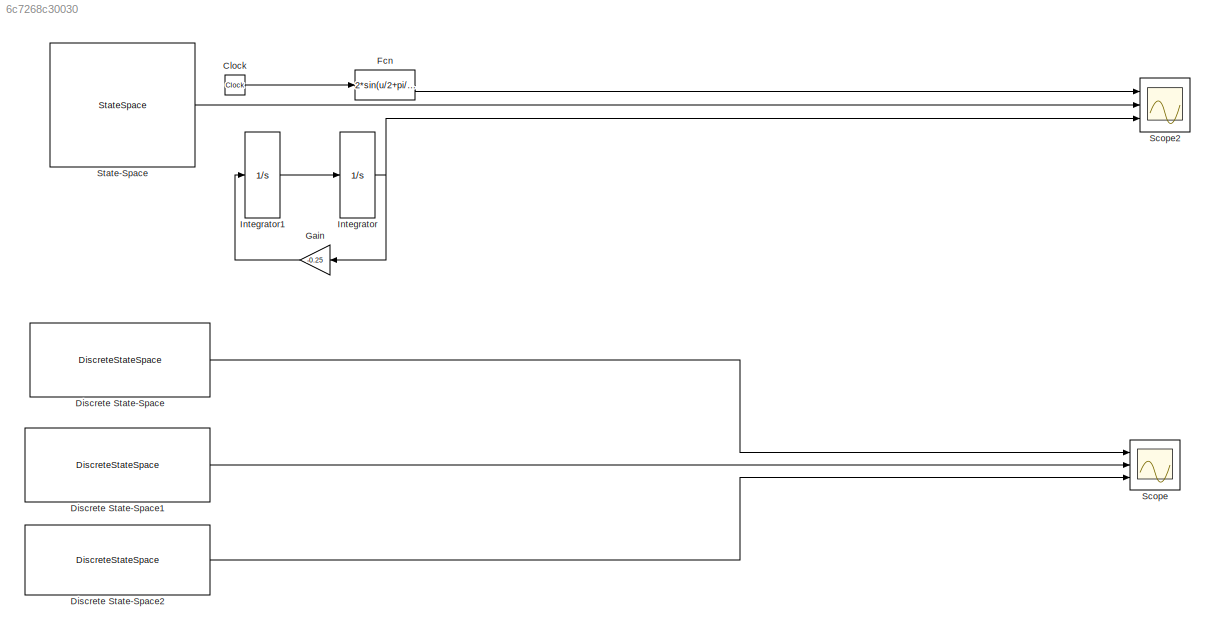
MODEL slx_6c7268c30030
KIND model
CONFIG AbsTol = auto
CONFIG EnableMultiTasking = off
CONFIG FixedStep = auto
CONFIG MaxStep = auto
CONFIG MinStep = auto
CONFIG RelTol = 1e-3
CONFIG SampleTimeConstraint = Unconstrained
CONFIG Solver = VariableStepAuto
CONFIG SolverName = VariableStepAuto
CONFIG StartTime = 0.0
CONFIG StopTime = 10.0
BLOCK [Clock] Clock
BLOCK [DiscreteStateSpace] Discrete State-Space
  A = yd1.A
  B = yd1.B
  C = yd1.C
  D = yd1.D
  InitialCondition = [2*sin(pi/6) cos(pi/6)]
  SampleTime = 0.2
BLOCK [DiscreteStateSpace] Discrete State-Space1
  A = yd2.A
  B = yd2.B
  C = yd2.C
  D = yd2.D
  InitialCondition = [2*sin(pi/6) cos(pi/6)]
  SampleTime = 0.02
BLOCK [DiscreteStateSpace] Discrete State-Space2
  A = yd3.A
  B = yd3.B
  C = yd3.C
  D = yd3.D
  InitialCondition = [2*sin(pi/6) cos(pi/6)]
  SampleTime = 0.002
BLOCK [Fcn] Fcn
  Expr = 2*sin(u/2+pi/6)
BLOCK [Gain] Gain
  Gain = -0.25
  OutDataTypeStr = Inherit: Inherit via internal rule
  ParamDataTypeStr = Inherit: Inherit via internal rule
  SaturateOnIntegerOverflow = off
BLOCK [Integrator] Integrator
  ContinuousStateAttributes = 'position'
  InitialCondition = 2*sin(pi/6)
  Ports = [1, 1]
BLOCK [Integrator] Integrator1
  ContinuousStateAttributes = 'position'
  InitialCondition = cos(pi/6)
  Ports = [1, 1]
BLOCK [Scope] Scope
  Floating = off
  NumInputPorts = 3
  Ports = [3]
  ScopeSpecificationString = Simulink.scopes.TimeScopeBlockCfg('CurrentConfiguration', extmgr.ConfigurationSet(extmgr.Configuration('Core','General UI',true),extmgr.Configuration('Core','Source UI',true),extmgr.Configuration('Sources','WiredSimulink',true),extmgr.Configuration('Visuals','Time Domain',true,'SerializedDisplays',{struct('MinYLimReal','-2.5','MaxYLimReal','2.5','YLabelReal','','MinYLimMag','0.00000','MaxYLimMag',...<+1466ch>
BLOCK [Scope] Scope2
  Floating = off
  NumInputPorts = 3
  Ports = [3]
  ScopeSpecificationString = Simulink.scopes.TimeScopeBlockCfg('CurrentConfiguration', extmgr.ConfigurationSet(extmgr.Configuration('Core','General UI',true),extmgr.Configuration('Core','Source UI',true),extmgr.Configuration('Sources','WiredSimulink',true,'DataLoggingVariableName','ScopeData2'),extmgr.Configuration('Visuals','Time Domain',true,'SerializedDisplays',{struct('MinYLimReal','-2.5','MaxYLimReal','2.5','YLabelReal',...<+1467ch>
BLOCK [StateSpace] State-Space
  A = [0 1; -0.25 0]
  B = [0; 0]
  C = [1 0]
  ContinuousStateAttributes = 'position'
  D = 0
  InitialCondition = [2*sin(pi/6) cos(pi/6)]
  Ports = [1, 1]
LINE Clock:1 -> Fcn:1
LINE Discrete State-Space1:1 -> Scope:2
LINE Discrete State-Space2:1 -> Scope:3
LINE Discrete State-Space:1 -> Scope:1
LINE Fcn:1 -> Scope2:1
LINE Gain:1 -> Integrator1:1
LINE Integrator1:1 -> Integrator:1
NET Integrator:1 -> Gain:1, Scope2:3
LINE State-Space:1 -> Scope2:2
note: NET lines group one-source signal fan-out (src -> all destinations, sorted); 1:1 wires keep LINE
